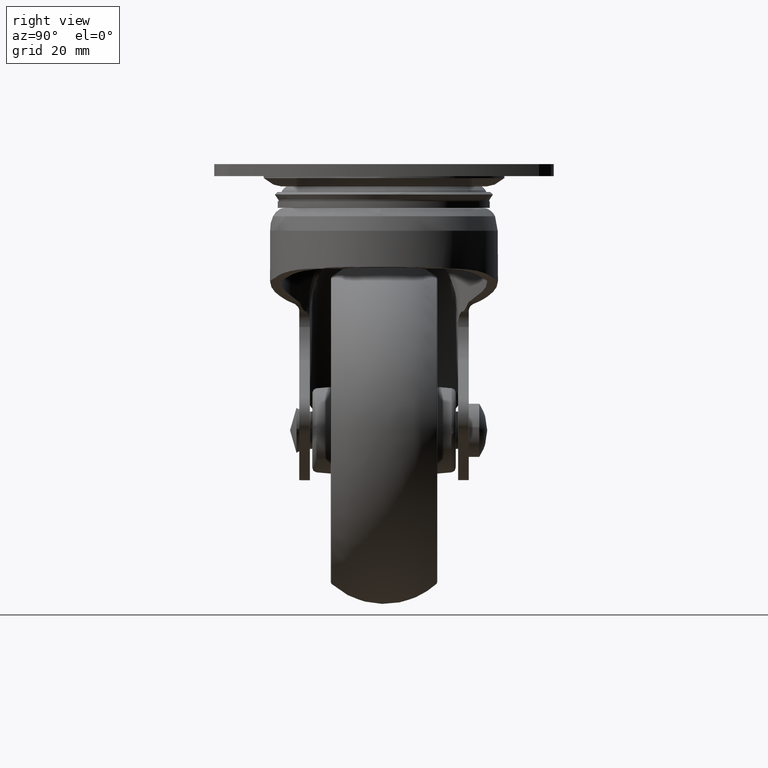
[diagram: clean part render]
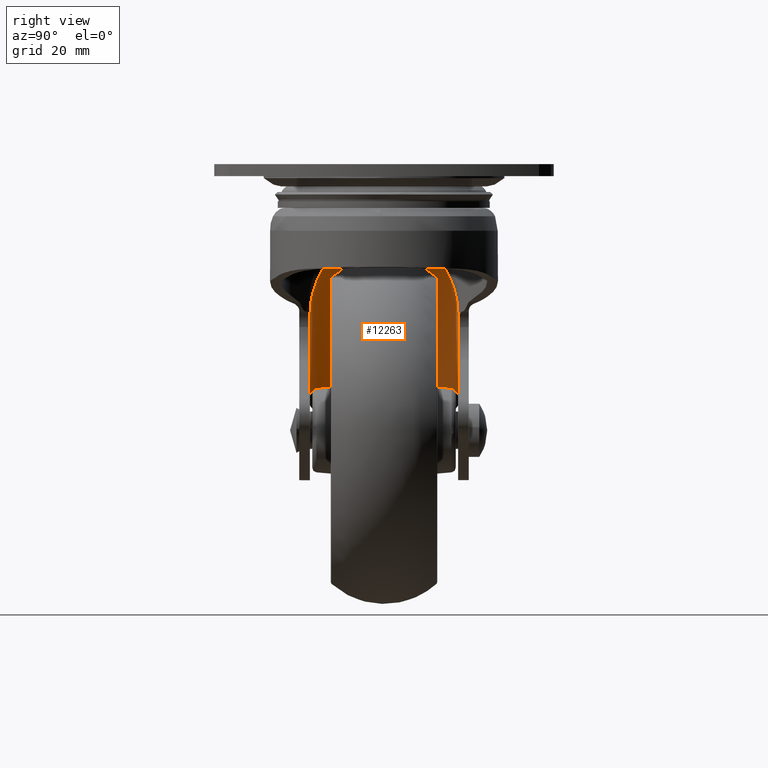
[diagram: same view with one face highlighted and labeled with its STEP entity id]
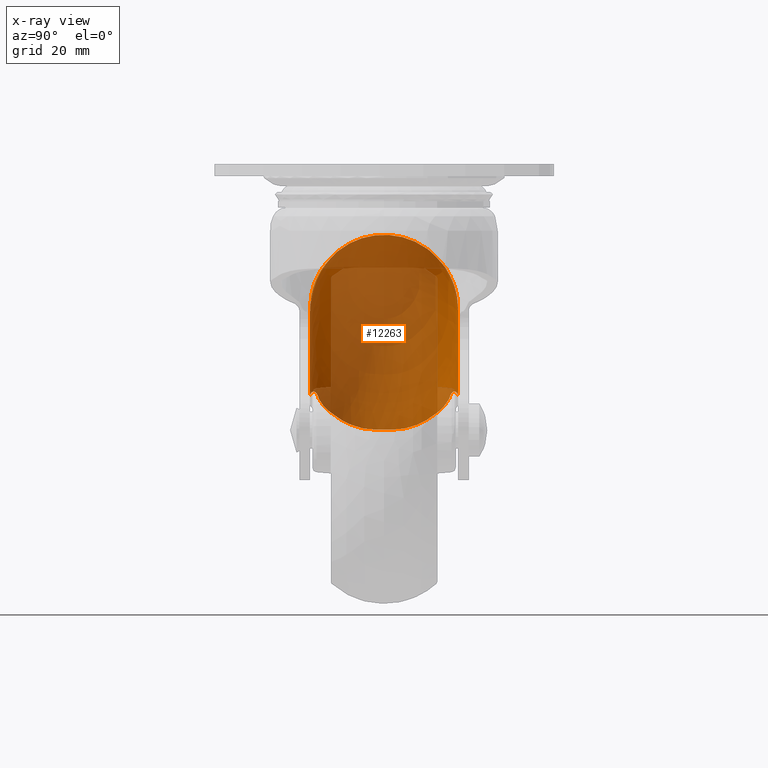
[diagram: x-ray of the same camera — body ghosted, the highlighted face saturated]
A machine part, right view. The second image highlights one B-rep face of the part: STEP entity #12263.
The next image is the same camera in x-ray: the body ghosted, the highlighted face saturated — about 81% of this face is hidden behind the body in this view.
In plain terms, the highlighted face is a freeform B-spline surface patch.
Its self-contained STEP definition (entity closure, byte-faithful):
#10026=CARTESIAN_POINT('',(-66.638523415125491,-4.240813478340890,-57.151595270458799));
#10027=VERTEX_POINT('',#10026);
#10028=CARTESIAN_POINT('',(-66.638523415125391,4.240813478341115,-57.151595270458799));
#10029=VERTEX_POINT('',#10028);
#10030=CARTESIAN_POINT('',(-66.638523415125391,-4.240813478340935,-57.151595270458799));
#10031=CARTESIAN_POINT('',(-66.733491309640456,-3.897318835817030,-57.216614658827233));
#10032=CARTESIAN_POINT('',(-66.816662935587445,-3.550801116461207,-57.263591556153919));
#10033=CARTESIAN_POINT('',(-66.959565876915519,-2.852858772125966,-57.336894217219474));
#10034=CARTESIAN_POINT('',(-67.019295923878303,-2.501419599163395,-57.363021535073450));
#10035=CARTESIAN_POINT('',(-67.115211941303343,-1.794170895146484,-57.402246746731038));
#10036=CARTESIAN_POINT('',(-67.151398967976476,-1.438357360350881,-57.415287200033518));
#10037=CARTESIAN_POINT('',(-67.187756444814354,-0.901536543859345,-57.428057763265763));
#10038=CARTESIAN_POINT('',(-67.196886354757893,-0.722077391483797,-57.431157700018012));
#10039=CARTESIAN_POINT('',(-67.209095497447848,-0.362127514408170,-57.435274401232917));
#10040=CARTESIAN_POINT('',(-67.212164304642528,-0.181521556369979,-57.436287677255038));
#10041=CARTESIAN_POINT('',(-67.212216944640019,0.358365375729749,-57.436305179803917));
#10042=CARTESIAN_POINT('',(-67.200115251261892,0.716844649839822,-57.432393195097653));
#10043=CARTESIAN_POINT('',(-67.152051202400500,1.430899712633943,-57.415521793186457));
#10044=CARTESIAN_POINT('',(-67.116087671324294,1.786476139421623,-57.402578742663792));
#10045=CARTESIAN_POINT('',(-67.020393002361629,2.494542397455097,-57.363495793121352));
#10046=CARTESIAN_POINT('',(-66.960662607263444,2.847035282025422,-57.337419945656997));
#10047=CARTESIAN_POINT('',(-66.853081988520103,3.373158841658691,-57.282290966431482));
#10048=CARTESIAN_POINT('',(-66.814164547924605,3.548328239190937,-57.261175501259928));
#10049=CARTESIAN_POINT('',(-66.730555669122694,3.896537753213229,-57.212030533050239));
#10050=CARTESIAN_POINT('',(-66.685920291269952,4.069381089414811,-57.184045351754477));
#10051=CARTESIAN_POINT('',(-66.638523415125391,4.240813478341151,-57.151595270458799));
#10052=B_SPLINE_CURVE_WITH_KNOTS('',3,(#10030,#10031,#10032,#10033,#10034,#10035,#10036,#10037,#10038,#10039,#10040,#10041,#10042,#10043,#10044,#10045,#10046,#10047,#10048,#10049,#10050,#10051),.UNSPECIFIED.,.F.,.U.,(4,2,2,2,2,2,2,2,2,2,4),(0.0,0.125000000000000,0.250000000000000,0.375000000000000,0.437500000000000,0.500000000000000,0.625000000000000,0.750000000000000,0.875000000000000,0.937500000000000,1.0),.UNSPECIFIED.);
#10053=EDGE_CURVE('',#10027,#10029,#10052,.T.);
#11477=CARTESIAN_POINT('',(-16.746544425879851,-16.0,-32.621063628186548));
#11478=VERTEX_POINT('',#11477);
#11492=CARTESIAN_POINT('',(-16.746544425879851,16.0,-32.621063628186548));
#11493=VERTEX_POINT('',#11492);
#11494=CARTESIAN_POINT('',(-16.746544425879851,16.0,-32.621063628186548));
#11495=CARTESIAN_POINT('',(-16.762679738461479,16.0,-32.327761259956027));
#11496=CARTESIAN_POINT('',(-16.787451222019889,15.993011160988351,-32.035722392749570));
#11497=CARTESIAN_POINT('',(-16.836574669510910,15.972669814495850,-31.599422595839151));
#11498=CARTESIAN_POINT('',(-16.854944772348230,15.964243780118739,-31.454282666849441));
#11499=CARTESIAN_POINT('',(-16.895525630278978,15.944176101781689,-31.164569522817619));
#11500=CARTESIAN_POINT('',(-16.917756835153021,15.932523112424191,-31.019875342191540));
#11501=CARTESIAN_POINT('',(-17.037930518164341,15.866491492831470,-30.299133279959051));
#11502=CARTESIAN_POINT('',(-17.161899829659099,15.789491803105980,-29.736000934060520));
#11503=CARTESIAN_POINT('',(-17.453876337824990,15.592263525002901,-28.632107044508441));
#11504=CARTESIAN_POINT('',(-17.621935056925100,15.471981849623059,-28.091372213707299));
#11505=CARTESIAN_POINT('',(-17.900720718477871,15.260132432998541,-27.294954529409921));
#11506=CARTESIAN_POINT('',(-17.998118017281261,15.184254445480819,-27.031940175978821));
#11507=CARTESIAN_POINT('',(-18.150257685995420,15.062489976314360,-26.640922056273428));
#11508=CARTESIAN_POINT('',(-18.201979017966899,15.020576044218490,-26.511167085766271));
#11509=CARTESIAN_POINT('',(-18.307336901975020,14.934073571476320,-26.252800922085950));
#11510=CARTESIAN_POINT('',(-18.361040472581699,14.889428031731301,-26.124035046046359));
#11511=CARTESIAN_POINT('',(-18.633042988149040,14.660335428964830,-25.485482185554499));
#11512=CARTESIAN_POINT('',(-18.861865781509941,14.458279679776529,-24.990971177602258));
#11513=CARTESIAN_POINT('',(-19.335144586947749,14.016490116159851,-24.031048712349179));
#11514=CARTESIAN_POINT('',(-19.579625704239920,13.776746303377889,-23.565656138979669));
#11515=CARTESIAN_POINT('',(-20.078717334401851,13.257825995573221,-22.662006462040079));
#11516=CARTESIAN_POINT('',(-20.333344952316502,12.978652240444960,-22.223756958391188));
#11517=CARTESIAN_POINT('',(-20.719220108428889,12.527882087733779,-21.586125634764471));
#11518=CARTESIAN_POINT('',(-20.848504158937221,12.372278471308681,-21.376880751763540));
#11519=CARTESIAN_POINT('',(-21.042973868487660,12.130427886116060,-21.067959031739210));
#11520=CARTESIAN_POINT('',(-21.107967824269569,12.048298936213440,-20.965685533805051));
#11521=CARTESIAN_POINT('',(-21.237633141115619,11.881696784826740,-20.763461911469680));
#11522=CARTESIAN_POINT('',(-21.302270005555219,11.797271808097991,-20.663562656053561));
#11523=CARTESIAN_POINT('',(-21.624286338846609,11.369473085170471,-20.170060800581432));
#11524=CARTESIAN_POINT('',(-21.878156545676301,11.009119220028079,-19.794387955840119));
#11525=CARTESIAN_POINT('',(-22.373714748128979,10.250145185194420,-19.080426337225241));
#11526=CARTESIAN_POINT('',(-22.615417625330220,9.851535158476958,-18.742135894696119));
#11527=CARTESIAN_POINT('',(-23.081860888131871,9.012826757958885,-18.103431696790469));
#11528=CARTESIAN_POINT('',(-23.306620181315392,8.572749555440421,-17.803005862982101));
#11529=CARTESIAN_POINT('',(-23.573603667165411,7.993682540901656,-17.452422158653761));
#11530=CARTESIAN_POINT('',(-23.626299750644812,7.876415553038410,-17.383557279703219));
#11531=CARTESIAN_POINT('',(-23.730195076423701,7.638875377123458,-17.248382671393120));
#11532=CARTESIAN_POINT('',(-23.781476792476440,7.518400702406374,-17.181966762398680));
#11533=CARTESIAN_POINT('',(-23.932283043425191,7.153865943442833,-16.987468658645149));
#11534=CARTESIAN_POINT('',(-24.028573670081890,6.907222390320041,-16.864379987071381));
#11535=CARTESIAN_POINT('',(-24.304011613609209,6.156259399783139,-16.514761280282030));
#11536=CARTESIAN_POINT('',(-24.469754337244421,5.640941045775995,-16.307809972357749));
#11537=CARTESIAN_POINT('',(-24.761240783097609,4.579316652097097,-15.947280931887100));
#11538=CARTESIAN_POINT('',(-24.887007206564100,4.033025076260427,-15.793681510572601));
#11539=CARTESIAN_POINT('',(-25.015839865652438,3.329009783009609,-15.637253913163420));
#11540=CARTESIAN_POINT('',(-25.040227485594109,3.186851685948378,-15.607701091436230));
#11541=CARTESIAN_POINT('',(-25.085747209066529,2.902348939635433,-15.552624518251770));
#11542=CARTESIAN_POINT('',(-25.106903099617679,2.759916139317775,-15.527071624452010));
#11543=CARTESIAN_POINT('',(-25.165566616315751,2.332077271136497,-15.456305843165850));
#11544=CARTESIAN_POINT('',(-25.198272256774590,2.046131130235289,-15.416980450595119));
#11545=CARTESIAN_POINT('',(-25.277163441617670,1.186148085754749,-15.322253077587639));
#11546=CARTESIAN_POINT('',(-25.304160284199629,0.609972919636769,-15.290014394836239));
#11547=CARTESIAN_POINT('',(-25.305554713707309,-0.258619070372297,-15.288346328788240));
#11548=CARTESIAN_POINT('',(-25.299493688633401,-0.548872841158204,-15.295593122378550));
#11549=CARTESIAN_POINT('',(-25.280438023442219,-0.985359251242708,-15.318407568507959));
#11550=CARTESIAN_POINT('',(-25.272424807946070,-1.131039121553589,-15.328004536253840));
#11551=CARTESIAN_POINT('',(-25.253038438987531,-1.422772536983491,-15.351240935058980));
#11552=CARTESIAN_POINT('',(-25.241650085950660,-1.568949509838755,-15.364898635156120));
#11553=CARTESIAN_POINT('',(-25.202618048222590,-2.005673335119818,-15.411756818693590));
#11554=CARTESIAN_POINT('',(-25.170074396750909,-2.295123370153552,-15.450879167518179));
#11555=CARTESIAN_POINT('',(-25.092213384098649,-2.870667750267951,-15.544782020862570));
#11556=CARTESIAN_POINT('',(-25.047207722718770,-3.154466540741251,-15.599187647527661));
#11557=CARTESIAN_POINT('',(-24.895144985685139,-3.994259310028975,-15.783763654822369));
#11558=CARTESIAN_POINT('',(-24.771064274163361,-4.538817622543220,-15.935235575914090));
#11559=CARTESIAN_POINT('',(-24.482322436015380,-5.599536477257209,-16.292167819483218));
#11560=CARTESIAN_POINT('',(-24.317641834292331,-6.115686442911999,-16.497644741764400));
#11561=CARTESIAN_POINT('',(-24.088756747056092,-6.743831909768626,-16.787950887674580));
#11562=CARTESIAN_POINT('',(-24.041826161892640,-6.868606705240770,-16.847690333970739));
#11563=CARTESIAN_POINT('',(-23.945710195358799,-7.116457260249970,-16.970538595484520));
#11564=CARTESIAN_POINT('',(-23.896458535353219,-7.239685680439523,-17.033733459742368));
#11565=CARTESIAN_POINT('',(-23.746335622133341,-7.604601359725817,-17.227190254423022));
#11566=CARTESIAN_POINT('',(-23.642875810207581,-7.842137400772282,-17.361602738346239));
#11567=CARTESIAN_POINT('',(-23.323476487905189,-8.538512664377677,-17.780614236337641));
#11568=CARTESIAN_POINT('',(-23.098537495291080,-8.981167359821340,-18.080935605805841));
#11569=CARTESIAN_POINT('',(-22.629857632641400,-9.827136617268680,-18.722045592779089));
#11570=CARTESIAN_POINT('',(-22.386099256950452,-10.230435870824330,-19.062842496106750));
#11571=CARTESIAN_POINT('',(-22.009896705301191,-10.807702595302089,-19.604464724436340));
#11572=CARTESIAN_POINT('',(-21.882489984794130,-10.995827505411130,-19.790457891392322));
#11573=CARTESIAN_POINT('',(-21.626919716666471,-11.360013328133389,-20.169488689594910));
#11574=CARTESIAN_POINT('',(-21.498560468536120,-11.536401261525461,-20.362797676760039));
#11575=CARTESIAN_POINT('',(-21.112675107064550,-12.049342247135369,-20.954011226728930));
#11576=CARTESIAN_POINT('',(-20.854336236481259,-12.369718216436389,-21.363166074665809));
#11577=CARTESIAN_POINT('',(-20.340340492658431,-12.970796250589720,-22.211895105825739));
#11578=CARTESIAN_POINT('',(-20.084667938887790,-13.251491681495381,-22.651464618350658));
#11579=CARTESIAN_POINT('',(-19.707042419060759,-13.644339397859850,-23.334843318846161));
#11580=CARTESIAN_POINT('',(-19.582151895897489,-13.770579170133690,-23.566650194232349));
#11581=CARTESIAN_POINT('',(-19.335062870542259,-14.013776153055440,-24.038630118843461));
#11582=CARTESIAN_POINT('',(-19.213519180056920,-14.130086324889330,-24.277566792925160));
#11583=CARTESIAN_POINT('',(-18.856718331528359,-14.462955368809681,-25.001754433276570));
#11584=CARTESIAN_POINT('',(-18.628887881234331,-14.663875116673580,-25.495052558723462));
#11585=CARTESIAN_POINT('',(-18.199150376620800,-15.025738724665960,-26.504273463928129));
#11586=CARTESIAN_POINT('',(-17.997217937569619,-15.186694074416121,-27.020182847761721));
#11587=CARTESIAN_POINT('',(-17.626514311139619,-15.468609733131199,-28.077414349619389));
#11588=CARTESIAN_POINT('',(-17.457699890141530,-15.589604814276029,-28.618708837489400));
#11589=CARTESIAN_POINT('',(-17.273434887928570,-15.714168793774411,-29.314059598628980));
#11590=CARTESIAN_POINT('',(-17.237927505505368,-15.737739256103890,-29.454072086921130));
#11591=CARTESIAN_POINT('',(-17.169792086379989,-15.782114998721280,-29.736079538642979));
#11592=CARTESIAN_POINT('',(-17.137161935183080,-15.802919835366531,-29.878114855486618));
#11593=CARTESIAN_POINT('',(-17.044448773675160,-15.860706326442040,-30.304652674614459));
#11594=CARTESIAN_POINT('',(-16.989322963071899,-15.893210331650010,-30.590444566600951));
#11595=CARTESIAN_POINT('',(-16.845708268487851,-15.972090333250200,-31.452414506118370));
#11596=CARTESIAN_POINT('',(-16.778886489386419,-15.999999999999989,-32.033160309180303));
#11597=CARTESIAN_POINT('',(-16.746544425879851,-16.0,-32.621063628186548));
#11598=B_SPLINE_CURVE_WITH_KNOTS('',3,(#11494,#11495,#11496,#11497,#11498,#11499,#11500,#11501,#11502,#11503,#11504,#11505,#11506,#11507,#11508,#11509,#11510,#11511,#11512,#11513,#11514,#11515,#11516,#11517,#11518,#11519,#11520,#11521,#11522,#11523,#11524,#11525,#11526,#11527,#11528,#11529,#11530,#11531,#11532,#11533,#11534,#11535,#11536,#11537,#11538,#11539,#11540,#11541,#11542,#11543,#11544,#11545,#11546,#11547,#11548,#11549,#11550,#11551,#11552,#11553,#11554,#11555,#11556,#11557,#11558,#11559,#11560,#11561,#11562,#11563,#11564,#11565,#11566,#11567,#11568,#11569,#11570,#11571,#11572,#11573,#11574,#11575,#11576,#11577,#11578,#11579,#11580,#11581,#11582,#11583,#11584,#11585,#11586,#11587,#11588,#11589,#11590,#11591,#11592,#11593,#11594,#11595,#11596,#11597),.UNSPECIFIED.,.F.,.U.,(4,2,2,2,2,2,2,2,2,2,2,2,2,2,2,2,2,2,2,2,2,2,2,2,2,2,2,2,2,2,2,2,2,2,2,2,2,2,2,2,2,2,2,2,2,2,2,2,2,2,2,4),(0.0,0.015625000000000,0.023437500000000,0.031250000000000,0.062500000000001,0.093750000000001,0.109375000000001,0.117187500000001,0.125000000000002,0.156250000000002,0.187500000000002,0.218750000000003,0.234375000000003,0.242187500000003,0.250000000000003,0.281250000000003,0.312500000000003,0.343750000000002,0.351562500000002,0.359375000000002,0.375000000000002,0.406250000000002,0.437500000000002,0.445312500000002,0.453125000000002,0.468750000000002,0.500000000000002,0.515625000000001,0.523437500000001,0.531250000000001,0.546875000000001,0.562500000000001,0.593750000000001,0.625000000000001,0.632812500000001,0.640625000000001,0.656250000000001,0.687500000000000,0.718750000000000,0.734375000000000,0.750000000000000,0.781250000000000,0.812500000000000,0.828125000000000,0.843750000000000,0.875000000000000,0.906250000000000,0.937500000000000,0.945312500000000,0.953125000000000,0.968750000000000,1.0),.UNSPECIFIED.);
#11599=EDGE_CURVE('',#11493,#11478,#11598,.T.);
#12016=CARTESIAN_POINT('',(-15.679174995729730,15.839608515897732,-35.435548897740198));
#12017=CARTESIAN_POINT('',(-51.933732562629743,15.839608515897730,-20.120307841413030));
#12018=CARTESIAN_POINT('',(-48.880206020610430,15.839608515897734,-59.358370085135746));
#12019=CARTESIAN_POINT('',(-8.528296271625182,18.461316288660015,-18.507839865706099));
#12020=CARTESIAN_POINT('',(-72.597123952833158,18.461316288660015,8.557158467905843));
#12021=CARTESIAN_POINT('',(-67.200950920528797,18.461316288660012,-60.784100042797363));
#12022=CARTESIAN_POINT('',(-8.573681232202922,-0.100530303448943,-18.615276089522993));
#12023=CARTESIAN_POINT('',(-72.465978223779516,-0.100530303448943,8.375149273213349));
#12024=CARTESIAN_POINT('',(-67.084673422738945,-0.100530303448943,-60.775051267056703));
#12025=CARTESIAN_POINT('',(-8.618525781763795,-18.441355961221131,-18.721433041126755));
#12026=CARTESIAN_POINT('',(-72.336394082438929,-18.441355961221134,8.195307311294254));
#12027=CARTESIAN_POINT('',(-66.969780472605805,-18.441355961221131,-60.766110237539408));
#12028=CARTESIAN_POINT('',(-15.683541179380812,-15.838003698304137,-35.445884618604367));
#12029=CARTESIAN_POINT('',(-51.921115908768790,-15.838003698304142,-20.137817729272264));
#12030=CARTESIAN_POINT('',(-48.869019739882724,-15.838003698304146,-59.357499562914327));
#12038=(BOUNDED_SURFACE()B_SPLINE_SURFACE(2,2,((#12016,#12019,#12022,#12025,#12028),(#12017,#12020,#12023,#12026,#12029),(#12018,#12021,#12024,#12027,#12030)),.UNSPECIFIED.,.F.,.F.,.U.)B_SPLINE_SURFACE_WITH_KNOTS((3,3),(3,2,3),(0.0,94.898953147490332),(0.0,29.328260581440169,58.428337076476943),.UNSPECIFIED.)GEOMETRIC_REPRESENTATION_ITEM()RATIONAL_B_SPLINE_SURFACE(((0.909279870553985,0.595672453586251,0.915441975391080,0.598160371885738,0.904438261327253),(0.473345722527344,0.310090454065188,0.476553542320636,0.311385594893877,0.470825315893657),(0.911681127117200,0.597245525238909,0.917859505045961,0.599740013715894,0.906826732007585)))REPRESENTATION_ITEM('')SURFACE());
#12039=CARTESIAN_POINT('',(-66.453623120664204,-4.859558894703480,-57.020265562803502));
#12040=VERTEX_POINT('',#12039);
#12041=CARTESIAN_POINT('',(-66.638523415125491,-4.240813478340890,-57.151595270458799));
#12042=CARTESIAN_POINT('',(-66.580963445388491,-4.449011015364852,-57.112200719636220));
#12043=CARTESIAN_POINT('',(-66.519302758073280,-4.655290973379263,-57.068630326567423));
#12044=CARTESIAN_POINT('',(-66.453623120664204,-4.859558894703480,-57.020265562803502));
#12045=B_SPLINE_CURVE_WITH_KNOTS('',3,(#12041,#12042,#12043,#12044),.UNSPECIFIED.,.F.,.U.,(4,4),(0.934169316680039,1.0),.UNSPECIFIED.);
#12046=EDGE_CURVE('',#10027,#12040,#12045,.T.);
#12047=ORIENTED_EDGE('',*,*,#12046,.F.);
#12048=ORIENTED_EDGE('',*,*,#10053,.T.);
#12049=CARTESIAN_POINT('',(-66.453623484449693,4.859557735676000,-57.020265068910703));
#12050=VERTEX_POINT('',#12049);
#12051=CARTESIAN_POINT('',(-66.453623484449693,4.859557735676000,-57.020265068910703));
#12052=CARTESIAN_POINT('',(-66.519519061435687,4.654616756488171,-57.068787440943638));
#12053=CARTESIAN_POINT('',(-66.581149167052828,4.448341298768633,-57.112329908522831));
#12054=CARTESIAN_POINT('',(-66.638523415125391,4.240813478341115,-57.151595270458799));
#12055=B_SPLINE_CURVE_WITH_KNOTS('',3,(#12051,#12052,#12053,#12054),.UNSPECIFIED.,.F.,.U.,(4,4),(0.0,0.065975419769530),.UNSPECIFIED.);
#12056=EDGE_CURVE('',#12050,#10029,#12055,.T.);
#12057=ORIENTED_EDGE('',*,*,#12056,.F.);
#12058=CARTESIAN_POINT('',(-62.977366252163300,10.690065290165100,-54.240859464777898));
#12059=VERTEX_POINT('',#12058);
#12060=CARTESIAN_POINT('',(-62.977366252163300,10.690065290165100,-54.240859464777898));
#12061=CARTESIAN_POINT('',(-63.349005023782333,10.308383507977821,-54.562947120187403));
#12062=CARTESIAN_POINT('',(-63.703799977943298,9.900887832635279,-54.861909639774161));
#12063=CARTESIAN_POINT('',(-64.375697849296941,9.032621430440813,-55.415689587342378));
#12064=CARTESIAN_POINT('',(-64.692824972748454,8.571876445123495,-55.670521018603282));
#12065=CARTESIAN_POINT('',(-65.136461871934983,7.838439110823537,-56.020283047498310));
#12066=CARTESIAN_POINT('',(-65.278988000317199,7.586892410178263,-56.131444906129950));
#12067=CARTESIAN_POINT('',(-65.484141323530878,7.198504826061292,-56.290001559645852));
#12068=CARTESIAN_POINT('',(-65.550934569266218,7.067470221051118,-56.341371452084637));
#12069=CARTESIAN_POINT('',(-65.680810754237143,6.803196893519012,-56.440819398624477));
#12070=CARTESIAN_POINT('',(-65.743969130073921,6.669816394438614,-56.488955797534850));
#12071=CARTESIAN_POINT('',(-66.050765920055184,5.996691168023417,-56.721816631981973));
#12072=CARTESIAN_POINT('',(-66.267515351004036,5.438353827339629,-56.883189779665763));
#12073=CARTESIAN_POINT('',(-66.453623484449622,4.859557735675950,-57.020265068910618));
#12074=B_SPLINE_CURVE_WITH_KNOTS('',3,(#12060,#12061,#12062,#12063,#12064,#12065,#12066,#12067,#12068,#12069,#12070,#12071,#12072,#12073),.UNSPECIFIED.,.F.,.U.,(4,2,2,2,2,2,4),(0.0,0.250000000000001,0.500000000000003,0.625000000000005,0.687500000000004,0.750000000000004,1.0),.UNSPECIFIED.);
#12075=EDGE_CURVE('',#12059,#12050,#12074,.T.);
#12076=ORIENTED_EDGE('',*,*,#12075,.F.);
#12077=CARTESIAN_POINT('',(-58.109018269089901,14.087621013848100,-50.712101974850597));
#12078=VERTEX_POINT('',#12077);
#12079=CARTESIAN_POINT('',(-58.109018269089901,14.087621013848100,-50.712101974850597));
#12080=CARTESIAN_POINT('',(-58.962585962258643,13.713219260031019,-51.413358050057887));
#12081=CARTESIAN_POINT('',(-59.804614300581271,13.254954776369329,-52.057330509301707));
#12082=CARTESIAN_POINT('',(-61.030771552401681,12.414309852129010,-52.939965283761822));
#12083=CARTESIAN_POINT('',(-61.433322896339689,12.108526273015791,-53.220293185187337));
#12084=CARTESIAN_POINT('',(-62.024984546357132,11.607198066081940,-53.620161068645046));
#12085=CARTESIAN_POINT('',(-62.220529710840133,11.432612463820570,-53.750241043238951));
#12086=CARTESIAN_POINT('',(-62.604277265734382,11.070977404875890,-54.001764529950812));
#12087=CARTESIAN_POINT('',(-62.792678933430253,10.883795479969409,-54.123350853337350));
#12088=CARTESIAN_POINT('',(-62.977366252163229,10.690065290165020,-54.240859464777877));
#12089=B_SPLINE_CURVE_WITH_KNOTS('',3,(#12079,#12080,#12081,#12082,#12083,#12084,#12085,#12086,#12087,#12088),.UNSPECIFIED.,.F.,.U.,(4,2,2,2,4),(0.0,0.499999999999999,0.749999999999999,0.875000000000000,1.0),.UNSPECIFIED.);
#12090=EDGE_CURVE('',#12078,#12059,#12089,.T.);
#12091=ORIENTED_EDGE('',*,*,#12090,.F.);
#12092=CARTESIAN_POINT('',(-55.496130569098597,15.060644943729050,-49.168225774312397));
#12093=VERTEX_POINT('',#12092);
#12094=CARTESIAN_POINT('',(-58.109018269089923,14.087621013848061,-50.712101974850569));
#12095=CARTESIAN_POINT('',(-58.036543977760282,14.113335884959060,-50.596386905660303));
#12096=CARTESIAN_POINT('',(-57.958112974873707,14.142181882182721,-50.487042415341421));
#12097=CARTESIAN_POINT('',(-57.790106325690722,14.205251416327330,-50.280110236709341));
#12098=CARTESIAN_POINT('',(-57.700526581380032,14.239478131907889,-50.182527276832282));
#12099=CARTESIAN_POINT('',(-57.557927534061328,14.294391418593619,-50.044700119484382));
#12100=CARTESIAN_POINT('',(-57.509018765048147,14.313293146637941,-50.000186606175873));
#12101=CARTESIAN_POINT('',(-57.408422548601578,14.352232871178179,-49.914021883991552));
#12102=CARTESIAN_POINT('',(-57.356570213939030,14.372334803151400,-49.872254462945541));
#12103=CARTESIAN_POINT('',(-57.198571826832449,14.433569870074610,-49.752628125988899));
#12104=CARTESIAN_POINT('',(-57.089716887568372,14.475733703688610,-49.680114975462743));
#12105=CARTESIAN_POINT('',(-56.865150791273877,14.562139324618339,-49.548811368818207));
#12106=CARTESIAN_POINT('',(-56.749438696800972,14.606383033362320,-49.490023911916531));
#12107=CARTESIAN_POINT('',(-56.570629038204402,14.673968840619070,-49.412080986925133));
#12108=CARTESIAN_POINT('',(-56.510149844661342,14.696701789235471,-49.387811338364052));
#12109=CARTESIAN_POINT('',(-56.387393208076020,14.742529806008941,-49.342745800714262));
#12110=CARTESIAN_POINT('',(-56.325374657769991,14.765527440965080,-49.322052897945753));
#12111=CARTESIAN_POINT('',(-56.013856140291182,14.880149027027221,-49.228232361209933));
#12112=CARTESIAN_POINT('',(-55.758409483122890,14.971295426234510,-49.182956609298643));
#12113=CARTESIAN_POINT('',(-55.496130569098597,15.060644943729050,-49.168225774312397));
#12114=B_SPLINE_CURVE_WITH_KNOTS('',3,(#12094,#12095,#12096,#12097,#12098,#12099,#12100,#12101,#12102,#12103,#12104,#12105,#12106,#12107,#12108,#12109,#12110,#12111,#12112,#12113),.UNSPECIFIED.,.F.,.U.,(4,2,2,2,2,2,2,2,2,4),(0.0,0.125000000000006,0.250000000000012,0.312500000000014,0.375000000000017,0.500000000000014,0.625000000000011,0.687500000000009,0.750000000000007,1.0),.UNSPECIFIED.);
#12115=EDGE_CURVE('',#12078,#12093,#12114,.T.);
#12116=ORIENTED_EDGE('',*,*,#12115,.T.);
#12117=CARTESIAN_POINT('',(-51.223773999999892,15.962637171393800,-49.892213953096700));
#12118=VERTEX_POINT('',#12117);
#12119=CARTESIAN_POINT('',(-55.496130569098597,15.060644943729040,-49.168225774312440));
#12120=CARTESIAN_POINT('',(-55.141474927004687,15.181464003593430,-49.148305913600574));
#12121=CARTESIAN_POINT('',(-54.785828477210792,15.291509791964041,-49.147703223370577));
#12122=CARTESIAN_POINT('',(-54.072477236920520,15.489524111072770,-49.185778069829759));
#12123=CARTESIAN_POINT('',(-53.714772229226078,15.577494466301470,-49.224448118848933));
#12124=CARTESIAN_POINT('',(-53.176601050839999,15.692040358026921,-49.313532706810442));
#12125=CARTESIAN_POINT('',(-52.996941599915097,15.727315809592721,-49.348419980477097));
#12126=CARTESIAN_POINT('',(-52.727039734600091,15.775714985186401,-49.408871723216443));
#12127=CARTESIAN_POINT('',(-52.636876378941842,15.791115092275250,-49.430410702293152));
#12128=CARTESIAN_POINT('',(-52.457237179957431,15.820249492939800,-49.476049290570728));
#12129=CARTESIAN_POINT('',(-52.367734682794477,15.833991172139131,-49.500150295396082));
#12130=CARTESIAN_POINT('',(-51.921813285143131,15.898589981416480,-49.627074244898267));
#12131=CARTESIAN_POINT('',(-51.570148943222037,15.937133377247839,-49.749090949976988));
#12132=CARTESIAN_POINT('',(-51.223773999999892,15.962637171393800,-49.892213953096700));
#12133=B_SPLINE_CURVE_WITH_KNOTS('',3,(#12119,#12120,#12121,#12122,#12123,#12124,#12125,#12126,#12127,#12128,#12129,#12130,#12131,#12132),.UNSPECIFIED.,.F.,.U.,(4,2,2,2,2,2,4),(0.0,0.249999999999996,0.499999999999992,0.624999999999992,0.687499999999994,0.749999999999996,1.0),.UNSPECIFIED.);
#12134=EDGE_CURVE('',#12093,#12118,#12133,.T.);
#12135=ORIENTED_EDGE('',*,*,#12134,.T.);
#12136=CARTESIAN_POINT('',(-50.207457976978397,16.0,-50.312158558646303));
#12137=VERTEX_POINT('',#12136);
#12138=CARTESIAN_POINT('',(-51.223773999999878,15.962637171393920,-49.892213953096672));
#12139=CARTESIAN_POINT('',(-50.884716851126782,15.987602153539299,-50.032313309415947));
#12140=CARTESIAN_POINT('',(-50.545946129586952,16.0,-50.172294313164997));
#12141=CARTESIAN_POINT('',(-50.207457976978390,16.0,-50.312158558646267));
#12142=QUASI_UNIFORM_CURVE('',3,(#12138,#12139,#12140,#12141),.UNSPECIFIED.,.F.,.U.);
#12143=EDGE_CURVE('',#12118,#12137,#12142,.T.);
#12144=ORIENTED_EDGE('',*,*,#12143,.T.);
#12145=CARTESIAN_POINT('',(-16.746544425879851,16.0,-32.621063628186548));
#12146=CARTESIAN_POINT('',(-27.363138160433348,16.000000000000004,-29.099064793819920));
#12147=CARTESIAN_POINT('',(-37.251663533115163,16.0,-34.327219752088538));
#12148=CARTESIAN_POINT('',(-47.140188905796961,16.000000000000004,-39.555374710357142));
#12149=CARTESIAN_POINT('',(-50.207457976978283,16.0,-50.312158558646331));
#12157=(BOUNDED_CURVE()B_SPLINE_CURVE(2,(#12145,#12146,#12147,#12148,#12149),.UNSPECIFIED.,.F.,.U.)B_SPLINE_CURVE_WITH_KNOTS((3,2,3),(0.0,0.500000000000000,1.0),.UNSPECIFIED.)CURVE()GEOMETRIC_REPRESENTATION_ITEM()RATIONAL_B_SPLINE_CURVE((1.0,0.919757070692031,1.0,0.919757070692031,1.0))REPRESENTATION_ITEM(''));
#12158=EDGE_CURVE('',#11493,#12137,#12157,.T.);
#12159=ORIENTED_EDGE('',*,*,#12158,.F.);
#12160=ORIENTED_EDGE('',*,*,#11599,.T.);
#12161=CARTESIAN_POINT('',(-50.207457976978397,-16.0,-50.312158558646303));
#12162=VERTEX_POINT('',#12161);
#12163=CARTESIAN_POINT('',(-16.746544425879851,-16.0,-32.621063628186548));
#12164=CARTESIAN_POINT('',(-27.363138160433348,-16.000000000000004,-29.099064793819920));
#12165=CARTESIAN_POINT('',(-37.251663533115163,-16.0,-34.327219752088538));
#12166=CARTESIAN_POINT('',(-47.140188905796961,-16.000000000000004,-39.555374710357142));
#12167=CARTESIAN_POINT('',(-50.207457976978283,-16.0,-50.312158558646331));
#12175=(BOUNDED_CURVE()B_SPLINE_CURVE(2,(#12163,#12164,#12165,#12166,#12167),.UNSPECIFIED.,.F.,.U.)B_SPLINE_CURVE_WITH_KNOTS((3,2,3),(0.0,0.500000000000000,1.0),.UNSPECIFIED.)CURVE()GEOMETRIC_REPRESENTATION_ITEM()RATIONAL_B_SPLINE_CURVE((1.0,0.919757070692031,1.0,0.919757070692031,1.0))REPRESENTATION_ITEM(''));
#12176=EDGE_CURVE('',#11478,#12162,#12175,.T.);
#12177=ORIENTED_EDGE('',*,*,#12176,.T.);
#12178=CARTESIAN_POINT('',(-51.223774021713098,-15.962637170968550,-49.892214005644803));
#12179=VERTEX_POINT('',#12178);
#12180=CARTESIAN_POINT('',(-50.207457976978390,-16.0,-50.312158558646267));
#12181=CARTESIAN_POINT('',(-50.545946129583768,-16.0,-50.172294313166333));
#12182=CARTESIAN_POINT('',(-50.884716851120423,-15.987602153539539,-50.032313309418583));
#12183=CARTESIAN_POINT('',(-51.223774021713098,-15.962637170968550,-49.892214005644803));
#12184=QUASI_UNIFORM_CURVE('',3,(#12180,#12181,#12182,#12183),.UNSPECIFIED.,.F.,.U.);
#12185=EDGE_CURVE('',#12162,#12179,#12184,.T.);
#12186=ORIENTED_EDGE('',*,*,#12185,.T.);
#12187=CARTESIAN_POINT('',(-55.496130595765287,-15.060644889625500,-49.168225299533098));
#12188=VERTEX_POINT('',#12187);
#12189=CARTESIAN_POINT('',(-51.223774021713112,-15.962637170968520,-49.892214005644867));
#12190=CARTESIAN_POINT('',(-51.570337374456052,-15.937119502843769,-49.749013089863482));
#12191=CARTESIAN_POINT('',(-51.920170440681943,-15.898699423746169,-49.627769619977407));
#12192=CARTESIAN_POINT('',(-52.625814856787301,-15.796730693572730,-49.426467950932462));
#12193=CARTESIAN_POINT('',(-52.981629378202520,-15.733185741376101,-49.346420100234340));
#12194=CARTESIAN_POINT('',(-53.519669540039423,-15.619185837861011,-49.256456867479059));
#12195=CARTESIAN_POINT('',(-53.699738290239637,-15.578068162889901,-49.231499203681317));
#12196=CARTESIAN_POINT('',(-53.970922779771414,-15.511695707066510,-49.201614112811761));
#12197=CARTESIAN_POINT('',(-54.061617206853853,-15.488756654584380,-49.192903359216977));
#12198=CARTESIAN_POINT('',(-54.242587471762100,-15.441512825273140,-49.178068583184697));
#12199=CARTESIAN_POINT('',(-54.332891038462762,-15.417203600925721,-49.171937462770032));
#12200=CARTESIAN_POINT('',(-54.783517159282738,-15.292281832169969,-49.147600766147690));
#12201=CARTESIAN_POINT('',(-55.141170949085272,-15.181567559462360,-49.148288838437459));
#12202=CARTESIAN_POINT('',(-55.496130595765287,-15.060644889625500,-49.168225299533098));
#12203=B_SPLINE_CURVE_WITH_KNOTS('',3,(#12189,#12190,#12191,#12192,#12193,#12194,#12195,#12196,#12197,#12198,#12199,#12200,#12201,#12202),.UNSPECIFIED.,.F.,.U.,(4,2,2,2,2,2,4),(0.0,0.250000000000000,0.500000000000000,0.625000000000000,0.687500000000000,0.750000000000000,1.0),.UNSPECIFIED.);
#12204=EDGE_CURVE('',#12179,#12188,#12203,.T.);
#12205=ORIENTED_EDGE('',*,*,#12204,.T.);
#12206=CARTESIAN_POINT('',(-58.109018221010103,-14.087621045534620,-50.712102033344102));
#12207=VERTEX_POINT('',#12206);
#12208=CARTESIAN_POINT('',(-55.496130595765273,-15.060644889625500,-49.168225299533177));
#12209=CARTESIAN_POINT('',(-55.758524184138437,-14.971256351978690,-49.182963048127867));
#12210=CARTESIAN_POINT('',(-56.013118685227262,-14.880402353837169,-49.228213966772117));
#12211=CARTESIAN_POINT('',(-56.384485802997972,-14.743786687636501,-49.339755102573527));
#12212=CARTESIAN_POINT('',(-56.506502649134553,-14.698196936430820,-49.384295793277957));
#12213=CARTESIAN_POINT('',(-56.746975217357203,-14.607324036735720,-49.488787454186962));
#12214=CARTESIAN_POINT('',(-56.863248968470373,-14.562867889204970,-49.547801324907233));
#12215=CARTESIAN_POINT('',(-57.087791639223177,-14.476477615806610,-49.678889057385867));
#12216=CARTESIAN_POINT('',(-57.196130864664070,-14.434515390716470,-49.750993698275387));
#12217=CARTESIAN_POINT('',(-57.404926583626377,-14.353593938818539,-49.908659922074683));
#12218=CARTESIAN_POINT('',(-57.505385428460798,-14.314632078812020,-49.994216495306318));
#12219=CARTESIAN_POINT('',(-57.698013391769720,-14.240438925600991,-50.179809467260213));
#12220=CARTESIAN_POINT('',(-57.788648967411604,-14.205802648036091,-50.278403702826772));
#12221=CARTESIAN_POINT('',(-57.957848429831117,-14.142277093268520,-50.486628993527532));
#12222=CARTESIAN_POINT('',(-58.036535136866632,-14.113339021791280,-50.596372789377988));
#12223=CARTESIAN_POINT('',(-58.109018221010103,-14.087621045534620,-50.712102033344102));
#12224=B_SPLINE_CURVE_WITH_KNOTS('',3,(#12208,#12209,#12210,#12211,#12212,#12213,#12214,#12215,#12216,#12217,#12218,#12219,#12220,#12221,#12222,#12223),.UNSPECIFIED.,.F.,.U.,(4,2,2,2,2,2,2,4),(0.0,0.249999999999994,0.374999999999995,0.499999999999996,0.624999999999997,0.749999999999998,0.874999999999999,1.0),.UNSPECIFIED.);
#12225=EDGE_CURVE('',#12188,#12207,#12224,.T.);
#12226=ORIENTED_EDGE('',*,*,#12225,.T.);
#12227=CARTESIAN_POINT('',(-62.977366440503197,-10.690065060502819,-54.240859247486902));
#12228=VERTEX_POINT('',#12227);
#12229=CARTESIAN_POINT('',(-62.977366440503197,-10.690065060502819,-54.240859247486902));
#12230=CARTESIAN_POINT('',(-62.607586206391261,-11.077950935126831,-54.005584299143649));
#12231=CARTESIAN_POINT('',(-62.225989354347817,-11.436461246044420,-53.755909775530000));
#12232=CARTESIAN_POINT('',(-61.443591994703823,-12.100238474749840,-53.227329828778508));
#12233=CARTESIAN_POINT('',(-61.042776346673982,-12.405478355545659,-52.948417184235467));
#12234=CARTESIAN_POINT('',(-60.225626949151263,-12.966894905852699,-52.360575530065908));
#12235=CARTESIAN_POINT('',(-59.809283174304831,-13.223052839407449,-52.051640856241796));
#12236=CARTESIAN_POINT('',(-59.175643784857243,-13.573191364753290,-51.565028210954587));
#12237=CARTESIAN_POINT('',(-58.962602970729982,-13.684358414454010,-51.398707511125231));
#12238=CARTESIAN_POINT('',(-58.536205428903322,-13.894657605990950,-51.060072913283598));
#12239=CARTESIAN_POINT('',(-58.322684140594383,-13.993900421230830,-50.887641131813297));
#12240=CARTESIAN_POINT('',(-58.109018221010110,-14.087621045534570,-50.712102033344067));
#12241=B_SPLINE_CURVE_WITH_KNOTS('',3,(#12229,#12230,#12231,#12232,#12233,#12234,#12235,#12236,#12237,#12238,#12239,#12240),.UNSPECIFIED.,.F.,.U.,(4,2,2,2,2,4),(0.0,0.250000000000001,0.500000000000001,0.750000000000002,0.875000000000001,1.0),.UNSPECIFIED.);
#12242=EDGE_CURVE('',#12228,#12207,#12241,.T.);
#12243=ORIENTED_EDGE('',*,*,#12242,.F.);
#12244=CARTESIAN_POINT('',(-66.453623120664204,-4.859558894703480,-57.020265562803502));
#12245=CARTESIAN_POINT('',(-66.267428962876892,-5.438622370818482,-56.883126149840010));
#12246=CARTESIAN_POINT('',(-66.051553113181754,-5.994191195790085,-56.722384559835703));
#12247=CARTESIAN_POINT('',(-65.565967194135453,-7.061122221043496,-56.353880268859697));
#12248=CARTESIAN_POINT('',(-65.296224508077614,-7.572461722912072,-56.146099877764357));
#12249=CARTESIAN_POINT('',(-64.853664575109860,-8.306838186457624,-55.797391892704063));
#12250=CARTESIAN_POINT('',(-64.699805987573356,-8.546177756489492,-55.674965095924136));
#12251=CARTESIAN_POINT('',(-64.459711040020480,-8.896965232879134,-55.481664487356120));
#12252=CARTESIAN_POINT('',(-64.378294749731708,-9.012271259870218,-55.415753437408021));
#12253=CARTESIAN_POINT('',(-64.213322247756395,-9.238927559752174,-55.281407574928920));
#12254=CARTESIAN_POINT('',(-64.129684451529087,-9.350397643626772,-55.212907153849692));
#12255=CARTESIAN_POINT('',(-63.705956447228608,-9.898628520780301,-54.863754640652182));
#12256=CARTESIAN_POINT('',(-63.349288856109823,-10.308091997373650,-54.563193107434401));
#12257=CARTESIAN_POINT('',(-62.977366440503282,-10.690065060502940,-54.240859247486981));
#12258=B_SPLINE_CURVE_WITH_KNOTS('',3,(#12244,#12245,#12246,#12247,#12248,#12249,#12250,#12251,#12252,#12253,#12254,#12255,#12256,#12257),.UNSPECIFIED.,.F.,.U.,(4,2,2,2,2,2,4),(0.0,0.249999999999999,0.499999999999998,0.624999999999999,0.687500000000001,0.750000000000002,1.0),.UNSPECIFIED.);
#12259=EDGE_CURVE('',#12040,#12228,#12258,.T.);
#12260=ORIENTED_EDGE('',*,*,#12259,.F.);
#12261=EDGE_LOOP('',(#12047,#12048,#12057,#12076,#12091,#12116,#12135,#12144,#12159,#12160,#12177,#12186,#12205,#12226,#12243,#12260));
#12262=FACE_OUTER_BOUND('',#12261,.T.);
#12263=ADVANCED_FACE('',(#12262),#12038,.F.);